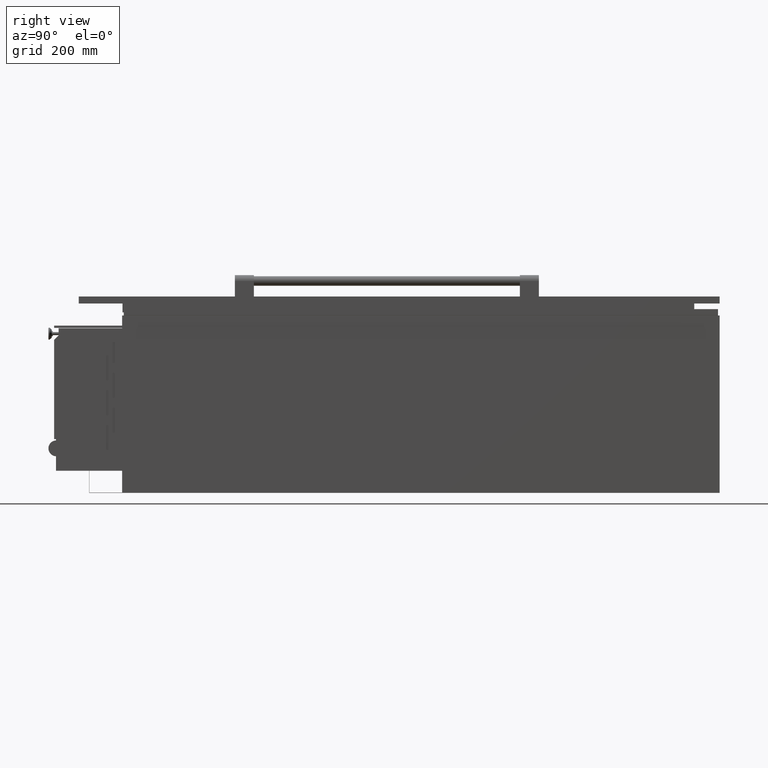
[diagram: clean part render]
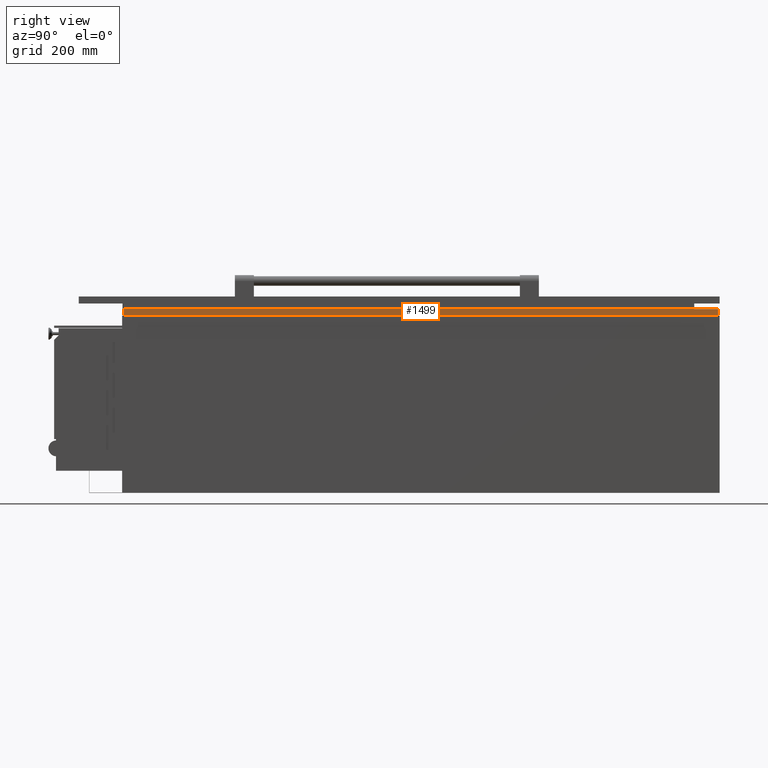
[diagram: same view with one face highlighted and labeled with its STEP entity id]
A machine part, right view. The second image highlights one B-rep face of the part: STEP entity #1499.
In plain terms, the highlighted planar face has unit normal (-1, 0, 0).
Its self-contained STEP definition (entity closure, byte-faithful):
#379 = VECTOR ( 'NONE', #1846, 1000.000000000000000 ) ;
#857 = LINE ( 'NONE', #2661, #379 ) ;
#948 = ORIENTED_EDGE ( 'NONE', *, *, #4084, .F. ) ;
#1123 = DIRECTION ( 'NONE',  ( 0.0000000000000000000, 0.0000000000000000000, -1.000000000000000000 ) ) ;
#1499 = ADVANCED_FACE ( 'NONE', ( #6140 ), #7547, .F. ) ;
#1846 = DIRECTION ( 'NONE',  ( 0.0000000000000000000, -2.775557561562891400E-015, 1.000000000000000000 ) ) ;
#1950 = AXIS2_PLACEMENT_3D ( 'NONE', #5233, #2072, #1123 ) ;
#2072 = DIRECTION ( 'NONE',  ( -1.000000000000000000, 0.0000000000000000000, 0.0000000000000000000 ) ) ;
#2411 = ORIENTED_EDGE ( 'NONE', *, *, #5918, .F. ) ;
#2661 = CARTESIAN_POINT ( 'NONE',  ( 898.9999993500003900, -831.1499999999996400, 300.2959233900002700 ) ) ;
#2682 = VERTEX_POINT ( 'NONE', #8346 ) ;
#3327 = EDGE_LOOP ( 'NONE', ( #9261, #5342, #2411, #948 ) ) ;
#3418 = CARTESIAN_POINT ( 'NONE',  ( 898.9999993500003900, 1100.901327281558900, 280.4999999500000700 ) ) ;
#3778 = CARTESIAN_POINT ( 'NONE',  ( 898.9999993500003900, 1100.901327281558900, 300.2959233900001000 ) ) ;
#3958 = EDGE_CURVE ( 'NONE', #8643, #6166, #7641, .T. ) ;
#4004 = CARTESIAN_POINT ( 'NONE',  ( 898.9999993500003900, 1045.850000000000100, 300.2959233900001000 ) ) ;
#4084 = EDGE_CURVE ( 'NONE', #6366, #2682, #9123, .T. ) ;
#4311 = DIRECTION ( 'NONE',  ( 0.0000000000000000000, 0.0000000000000000000, 1.000000000000000000 ) ) ;
#4626 = CARTESIAN_POINT ( 'NONE',  ( 898.9999993500003900, 1045.850000000000100, 280.4999999500000700 ) ) ;
#5080 = CARTESIAN_POINT ( 'NONE',  ( 898.9999993500003900, 1045.850000000000100, 300.2959233900001000 ) ) ;
#5233 = CARTESIAN_POINT ( 'NONE',  ( 898.9999993500003900, 1100.901327281558900, 300.2959233900001000 ) ) ;
#5342 = ORIENTED_EDGE ( 'NONE', *, *, #3958, .T. ) ;
#5463 = DIRECTION ( 'NONE',  ( 0.0000000000000000000, -1.000000000000000000, -0.0000000000000000000 ) ) ;
#5918 = EDGE_CURVE ( 'NONE', #2682, #6166, #857, .T. ) ;
#6140 = FACE_OUTER_BOUND ( 'NONE', #3327, .T. ) ;
#6166 = VERTEX_POINT ( 'NONE', #6876 ) ;
#6366 = VERTEX_POINT ( 'NONE', #4626 ) ;
#6876 = CARTESIAN_POINT ( 'NONE',  ( 898.9999993500003900, -831.1499999999996400, 300.2959233900001000 ) ) ;
#6900 = EDGE_CURVE ( 'NONE', #6366, #8643, #10049, .T. ) ;
#7436 = VECTOR ( 'NONE', #4311, 1000.000000000000000 ) ;
#7524 = VECTOR ( 'NONE', #5463, 1000.000000000000000 ) ;
#7547 = PLANE ( 'NONE',  #1950 ) ;
#7641 = LINE ( 'NONE', #3778, #7524 ) ;
#8180 = DIRECTION ( 'NONE',  ( 0.0000000000000000000, -1.000000000000000000, -0.0000000000000000000 ) ) ;
#8346 = CARTESIAN_POINT ( 'NONE',  ( 898.9999993500003900, -831.1499999999995200, 280.4999999500000700 ) ) ;
#8643 = VERTEX_POINT ( 'NONE', #4004 ) ;
#8995 = VECTOR ( 'NONE', #8180, 1000.000000000000000 ) ;
#9123 = LINE ( 'NONE', #3418, #8995 ) ;
#9261 = ORIENTED_EDGE ( 'NONE', *, *, #6900, .T. ) ;
#10049 = LINE ( 'NONE', #5080, #7436 ) ;